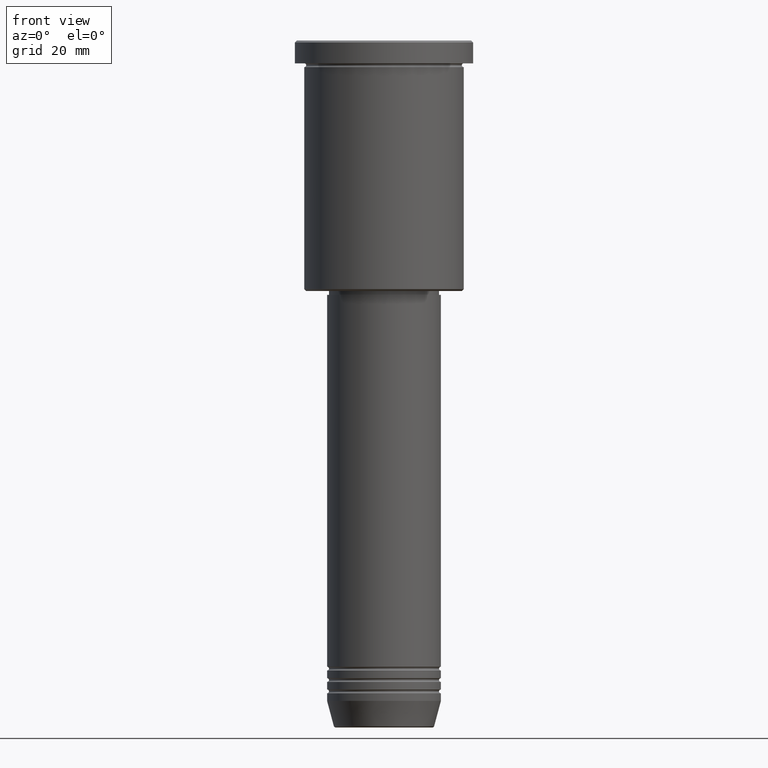
[diagram: clean part render]
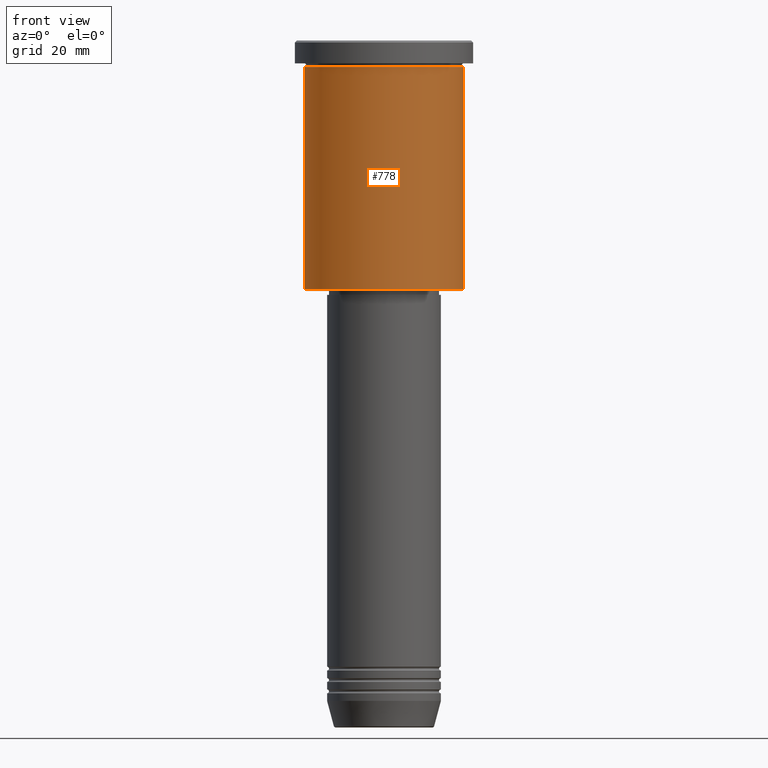
[diagram: same view with one face highlighted and labeled with its STEP entity id]
A machine part, front view. The second image highlights one B-rep face of the part: STEP entity #778.
In plain terms, the highlighted cylindrical surface (partial cylindrical patch) has radius 21 mm, axis along (-0, -0, 1).
Its self-contained STEP definition (entity closure, byte-faithful):
#36 = VECTOR ( 'NONE', #127, 1000.000000000000000 ) ;
#59 = CYLINDRICAL_SURFACE ( 'NONE', #369, 21.00000000000000000 ) ;
#81 = DIRECTION ( 'NONE',  ( -0.000000000000000000, -0.000000000000000000, 1.000000000000000000 ) ) ;
#105 = CARTESIAN_POINT ( 'NONE',  ( -21.00000000000000000, 2.571758278209441661E-15, -6.999999999999994671 ) ) ;
#109 = VERTEX_POINT ( 'NONE', #105 ) ;
#127 = DIRECTION ( 'NONE',  ( -0.000000000000000000, -0.000000000000000000, 1.000000000000000000 ) ) ;
#159 = DIRECTION ( 'NONE',  ( 1.000000000000000000, 0.000000000000000000, 0.000000000000000000 ) ) ;
#216 = CIRCLE ( 'NONE', #1108, 21.00000000000000000 ) ;
#224 = EDGE_CURVE ( 'NONE', #109, #253, #365, .T. ) ;
#246 = VECTOR ( 'NONE', #1148, 1000.000000000000000 ) ;
#251 = EDGE_CURVE ( 'NONE', #762, #109, #673, .T. ) ;
#253 = VERTEX_POINT ( 'NONE', #496 ) ;
#302 = AXIS2_PLACEMENT_3D ( 'NONE', #1029, #410, #326 ) ;
#326 = DIRECTION ( 'NONE',  ( 1.000000000000000000, 0.000000000000000000, 0.000000000000000000 ) ) ;
#365 = CIRCLE ( 'NONE', #302, 21.00000000000000000 ) ;
#369 = AXIS2_PLACEMENT_3D ( 'NONE', #717, #81, #159 ) ;
#410 = DIRECTION ( 'NONE',  ( -0.000000000000000000, -0.000000000000000000, 1.000000000000000000 ) ) ;
#448 = CARTESIAN_POINT ( 'NONE',  ( -21.00000000000000000, 2.571758278209441661E-15, -65.49999999999997158 ) ) ;
#459 = DIRECTION ( 'NONE',  ( -1.000000000000000000, 0.000000000000000000, 0.000000000000000000 ) ) ;
#496 = CARTESIAN_POINT ( 'NONE',  ( 21.00000000000000000, 0.000000000000000000, -6.999999999999994671 ) ) ;
#551 = CARTESIAN_POINT ( 'NONE',  ( 0.000000000000000000, 0.000000000000000000, -65.49999999999997158 ) ) ;
#570 = CARTESIAN_POINT ( 'NONE',  ( 21.00000000000000000, 0.000000000000000000, -65.49999999999997158 ) ) ;
#605 = CARTESIAN_POINT ( 'NONE',  ( -21.00000000000000000, 2.571758278209441661E-15, 0.000000000000000000 ) ) ;
#627 = LINE ( 'NONE', #816, #246 ) ;
#673 = LINE ( 'NONE', #605, #36 ) ;
#715 = ORIENTED_EDGE ( 'NONE', *, *, #773, .T. ) ;
#717 = CARTESIAN_POINT ( 'NONE',  ( 0.000000000000000000, 0.000000000000000000, 0.000000000000000000 ) ) ;
#727 = ORIENTED_EDGE ( 'NONE', *, *, #251, .F. ) ;
#762 = VERTEX_POINT ( 'NONE', #448 ) ;
#773 = EDGE_CURVE ( 'NONE', #974, #253, #627, .T. ) ;
#778 = ADVANCED_FACE ( 'NONE', ( #882 ), #59, .T. ) ;
#816 = CARTESIAN_POINT ( 'NONE',  ( 21.00000000000000000, 0.000000000000000000, 0.000000000000000000 ) ) ;
#882 = FACE_OUTER_BOUND ( 'NONE', #1128, .T. ) ;
#911 = DIRECTION ( 'NONE',  ( -0.000000000000000000, -0.000000000000000000, 1.000000000000000000 ) ) ;
#974 = VERTEX_POINT ( 'NONE', #570 ) ;
#982 = ORIENTED_EDGE ( 'NONE', *, *, #224, .F. ) ;
#1014 = EDGE_CURVE ( 'NONE', #762, #974, #216, .T. ) ;
#1029 = CARTESIAN_POINT ( 'NONE',  ( 0.000000000000000000, 0.000000000000000000, -6.999999999999994671 ) ) ;
#1108 = AXIS2_PLACEMENT_3D ( 'NONE', #551, #911, #459 ) ;
#1128 = EDGE_LOOP ( 'NONE', ( #727, #1174, #715, #982 ) ) ;
#1148 = DIRECTION ( 'NONE',  ( -0.000000000000000000, -0.000000000000000000, 1.000000000000000000 ) ) ;
#1174 = ORIENTED_EDGE ( 'NONE', *, *, #1014, .T. ) ;